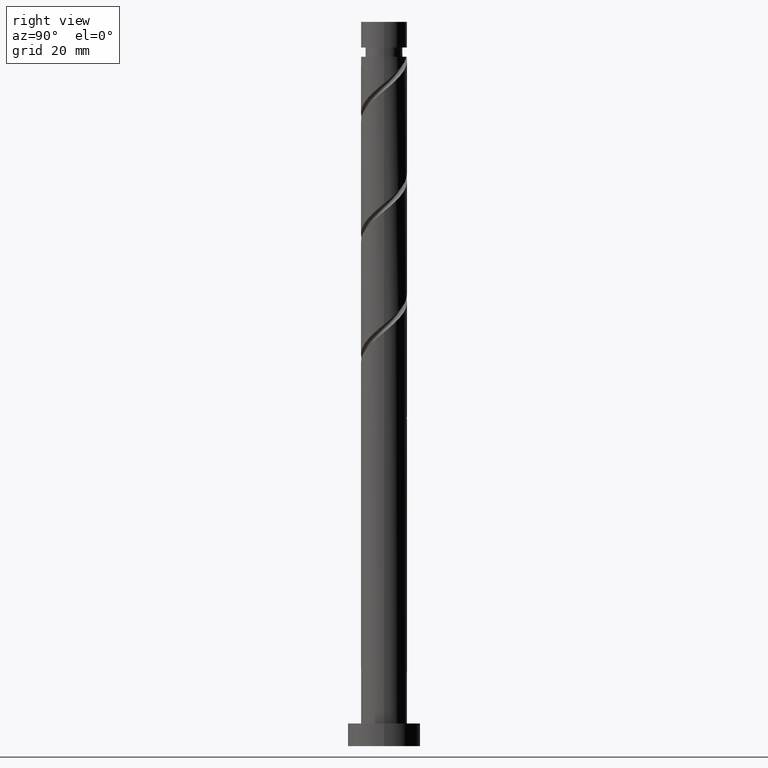
[diagram: clean part render]
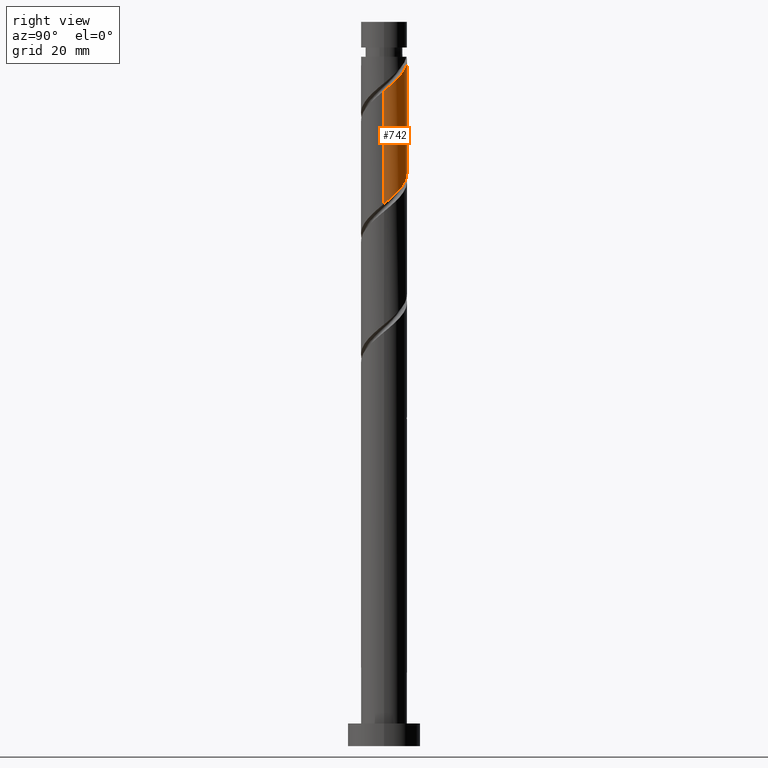
[diagram: same view with one face highlighted and labeled with its STEP entity id]
A machine part, right view. The second image highlights one B-rep face of the part: STEP entity #742.
In plain terms, the highlighted cylindrical surface (edge-blend (fillet) strip) has radius 5.1 mm, axis along (-0, -0, -1).
Its self-contained STEP definition (entity closure, byte-faithful):
#35 = ORIENTED_EDGE ( 'NONE', *, *, #653, .F. ) ;
#72 = CARTESIAN_POINT ( 'NONE',  ( 5.100000000000005862, 3.305457375472709863E-15, 144.7900409647607489 ) ) ;
#82 = DIRECTION ( 'NONE',  ( -0.000000000000000000, -0.000000000000000000, -1.000000000000000000 ) ) ;
#98 = CARTESIAN_POINT ( 'NONE',  ( 0.000000000000000000, 0.000000000000000000, 152.3061621107282804 ) ) ;
#109 = CARTESIAN_POINT ( 'NONE',  ( 0.000000000000000000, 0.000000000000000000, 160.0000000000000000 ) ) ;
#113 = CARTESIAN_POINT ( 'NONE',  ( 2.531763087263168899, 4.487522650124085466, 149.2758590804251924 ) ) ;
#203 = DIRECTION ( 'NONE',  ( -0.000000000000000000, -0.000000000000000000, -1.000000000000000000 ) ) ;
#215 = CARTESIAN_POINT ( 'NONE',  ( 2.381876442926734505, 4.509619120350484067, 124.4273742319403766 ) ) ;
#230 = CARTESIAN_POINT ( 'NONE',  ( 0.4343221952601982183, 5.081472643900035280, 151.0940408986070622 ) ) ;
#234 = CARTESIAN_POINT ( 'NONE',  ( -4.124741339277075092, 2.999418090906761147, 130.4879802925464389 ) ) ;
#285 = ORIENTED_EDGE ( 'NONE', *, *, #832, .T. ) ;
#337 = CYLINDRICAL_SURFACE ( 'NONE', #561, 5.099999999999999645 ) ;
#361 = CARTESIAN_POINT ( 'NONE',  ( -5.091561072240594399, 0.2932675359534164805, 132.9122227167888468 ) ) ;
#399 = VERTEX_POINT ( 'NONE', #1507 ) ;
#439 = CARTESIAN_POINT ( 'NONE',  ( 4.802694060801213638, 1.715846659333174484, 146.2455560501222180 ) ) ;
#456 = CARTESIAN_POINT ( 'NONE',  ( 3.030261786617840070, 4.167156988879663793, 123.8213136258797959 ) ) ;
#469 = CARTESIAN_POINT ( 'NONE',  ( 4.967940086286690260, 1.153070379060092687, 120.7910105955767506 ) ) ;
#474 = CARTESIAN_POINT ( 'NONE',  ( -0.2962832724618680857, 5.143918748178697875, 151.7001015046676571 ) ) ;
#477 = DIRECTION ( 'NONE',  ( -0.000000000000000000, -0.000000000000000000, -1.000000000000000000 ) ) ;
#480 =( BOUNDED_CURVE ( )  B_SPLINE_CURVE ( 2, ( #581, #962, #1054, #1597, #439, #931, #706, #818, #636, #113, #741, #1394, #230, #474, #512 ),
 .UNSPECIFIED., .F., .T. ) 
 B_SPLINE_CURVE_WITH_KNOTS ( ( 3, 2, 2, 2, 2, 2, 2, 3 ),
 ( 0.6795252162417514397, 0.6818181818181818787, 0.6931818181818181213, 0.7045454545454545858, 0.7159090909090907173, 0.7272727272727271819, 0.7386363636363635354, 0.7499999999999998890 ),
 .UNSPECIFIED. ) 
 CURVE ( )  GEOMETRIC_REPRESENTATION_ITEM ( )  RATIONAL_B_SPLINE_CURVE ( ( 0.9061101570135600136, 0.9072237824201421219, 0.9090909090909194967, 0.8998376744372218461, 0.9090909090909194967, 0.8998376744372218461, 0.9090909090909194967, 0.8998376744372218461, 0.9090909090909194967, 0.8998376744372218461, 0.9090909090909194967, 0.8998376744372218461, 0.9090909090909194967, 0.8998376744372219571, 0.9090909090909193857 ) ) 
 REPRESENTATION_ITEM ( '' )  );
#485 = CARTESIAN_POINT ( 'NONE',  ( 3.555900236163433981, 3.655895719307762359, 123.2152530198191869 ) ) ;
#490 = CARTESIAN_POINT ( 'NONE',  ( 5.099999999999997868, -5.892987357177625303E-15, 119.8222832566958118 ) ) ;
#512 = CARTESIAN_POINT ( 'NONE',  ( -1.014887185848723394, 4.997999999999716003, 152.3061621107281951 ) ) ;
#561 = AXIS2_PLACEMENT_3D ( 'NONE', #109, #1081, #727 ) ;
#568 = CARTESIAN_POINT ( 'NONE',  ( -5.099999999999999645, 0.000000000000000000, 160.0000000000000000 ) ) ;
#581 = CARTESIAN_POINT ( 'NONE',  ( 5.100000000000005862, 3.305457375472709863E-15, 144.7900409647607773 ) ) ;
#584 = CARTESIAN_POINT ( 'NONE',  ( -5.099999999999998757, -2.348220850448952543E-15, 133.1556165900291546 ) ) ;
#593 = CARTESIAN_POINT ( 'NONE',  ( -5.099999999999998757, 0.1467551852714936989, 133.0335185853109294 ) ) ;
#606 = CARTESIAN_POINT ( 'NONE',  ( -3.693490123188840624, 3.592466363838560550, 129.8819196864858156 ) ) ;
#623 = FACE_OUTER_BOUND ( 'NONE', #1425, .T. ) ;
#636 = CARTESIAN_POINT ( 'NONE',  ( 3.112626605226006760, 4.039994506981325451, 148.6697984743646259 ) ) ;
#653 = EDGE_CURVE ( 'NONE', #813, #1185, #1458, .T. ) ;
#700 = ORIENTED_EDGE ( 'NONE', *, *, #1048, .F. ) ;
#706 = CARTESIAN_POINT ( 'NONE',  ( 4.124741339277080421, 2.999418090906763368, 147.4576772622434362 ) ) ;
#715 = CARTESIAN_POINT ( 'NONE',  ( 0.2962832724618764124, 5.143918748178693434, 126.2455560501222180 ) ) ;
#723 = CARTESIAN_POINT ( 'NONE',  ( -4.555992555365308228, 2.406369817974963077, 131.0940408986070622 ) ) ;
#724 = EDGE_CURVE ( 'NONE', #1417, #1185, #956, .T. ) ;
#727 = DIRECTION ( 'NONE',  ( -1.000000000000000000, 0.000000000000000000, 0.000000000000000000 ) ) ;
#741 = CARTESIAN_POINT ( 'NONE',  ( 1.848345375122719680, 4.753274594872730852, 149.8819196864858441 ) ) ;
#742 = ADVANCED_FACE ( 'NONE', ( #623 ), #337, .T. ) ;
#744 = CIRCLE ( 'NONE', #1093, 5.099999999999993427 ) ;
#746 = CARTESIAN_POINT ( 'NONE',  ( 4.441846140019162448, 2.505993389535748683, 122.0031318076979687 ) ) ;
#774 = ORIENTED_EDGE ( 'NONE', *, *, #1432, .F. ) ;
#791 = ORIENTED_EDGE ( 'NONE', *, *, #724, .T. ) ;
#813 = VERTEX_POINT ( 'NONE', #1364 ) ;
#818 = CARTESIAN_POINT ( 'NONE',  ( 3.693490123188847729, 3.592466363838562327, 148.0637378683039174 ) ) ;
#832 = EDGE_CURVE ( 'NONE', #1618, #399, #744, .T. ) ;
#833 = CARTESIAN_POINT ( 'NONE',  ( -1.848345375122717460, 4.753274594872723746, 128.0637378683040311 ) ) ;
#838 = CARTESIAN_POINT ( 'NONE',  ( 1.014887185848754259, 4.997999999999999332, 125.6394954440615805 ) ) ;
#852 = CARTESIAN_POINT ( 'NONE',  ( -2.531763087263166678, 4.487522650124081913, 128.6697984743646828 ) ) ;
#931 = CARTESIAN_POINT ( 'NONE',  ( 4.555992555365316221, 2.406369817974962633, 146.8516166561827561 ) ) ;
#950 = LINE ( 'NONE', #568, #1220 ) ;
#956 = LINE ( 'NONE', #1355, #1628 ) ;
#962 = CARTESIAN_POINT ( 'NONE',  ( 5.100000000000004086, 0.1467551852714972516, 144.9121389694789457 ) ) ;
#981 = CARTESIAN_POINT ( 'NONE',  ( 4.802153594329293007, 1.867352329335633776, 121.3970712016373739 ) ) ;
#1048 = EDGE_CURVE ( 'NONE', #1417, #399, #480, .T. ) ;
#1054 = CARTESIAN_POINT ( 'NONE',  ( 5.091561072240601504, 0.2932675359534151482, 145.0334348380010283 ) ) ;
#1081 = DIRECTION ( 'NONE',  ( -0.000000000000000000, -0.000000000000000000, -1.000000000000000000 ) ) ;
#1093 = AXIS2_PLACEMENT_3D ( 'NONE', #98, #477, #1650 ) ;
#1185 = VERTEX_POINT ( 'NONE', #490 ) ;
#1216 = CARTESIAN_POINT ( 'NONE',  ( 5.099999999999997868, -5.892987357177625303E-15, 119.8222832566958118 ) ) ;
#1220 = VECTOR ( 'NONE', #203, 1000.000000000000000 ) ;
#1226 = CARTESIAN_POINT ( 'NONE',  ( -4.802694060801206533, 1.715846659333174040, 131.7001015046676571 ) ) ;
#1247 = CARTESIAN_POINT ( 'NONE',  ( 5.100000000000001421, 0.5840975296641219838, 120.3082432096671539 ) ) ;
#1348 = CARTESIAN_POINT ( 'NONE',  ( 4.081538685709031888, 3.144634449735860926, 122.6091924137585920 ) ) ;
#1355 = CARTESIAN_POINT ( 'NONE',  ( 5.099999999999999645, 6.245698675651500839E-16, 160.0000000000000000 ) ) ;
#1364 = CARTESIAN_POINT ( 'NONE',  ( -5.099999999999998757, -2.348220850448952543E-15, 133.1556165900291546 ) ) ;
#1373 = CARTESIAN_POINT ( 'NONE',  ( 1.733491099235630495, 4.852081251821307895, 125.0334348380010283 ) ) ;
#1394 = CARTESIAN_POINT ( 'NONE',  ( 1.164927662982271572, 5.019026539621373573, 150.4879802925464389 ) ) ;
#1417 = VERTEX_POINT ( 'NONE', #72 ) ;
#1425 = EDGE_LOOP ( 'NONE', ( #700, #791, #35, #774, #285 ) ) ;
#1432 = EDGE_CURVE ( 'NONE', #1618, #813, #950, .T. ) ;
#1458 =( BOUNDED_CURVE ( )  B_SPLINE_CURVE ( 2, ( #584, #593, #361, #1491, #1226, #723, #234, #606, #1484, #852, #833, #1644, #1476, #715, #838, #1373, #215, #456, #485, #1348, #746, #981, #469, #1247, #1216 ),
 .UNSPECIFIED., .F., .T. ) 
 B_SPLINE_CURVE_WITH_KNOTS ( ( 3, 2, 2, 2, 2, 2, 2, 2, 2, 2, 2, 2, 3 ),
 ( 0.4295252162417513286, 0.4318181818181818232, 0.4431818181818181768, 0.4545454545454545303, 0.4659090909090908839, 0.4772727272727272929, 0.4886363636363636465, 0.5000000000000000000, 0.5113636363636363535, 0.5227272727272727071, 0.5340909090909090606, 0.5454545454545454142, 0.5545252162417513286 ),
 .UNSPECIFIED. ) 
 CURVE ( )  GEOMETRIC_REPRESENTATION_ITEM ( )  RATIONAL_B_SPLINE_CURVE ( ( 0.9061101570135544625, 0.9072237824201366818, 0.9090909090909141677, 0.8998376744372164060, 0.9090909090909141677, 0.8998376744372164060, 0.9090909090909141677, 0.8998376744372164060, 0.9090909090909141677, 0.8998376744372164060, 0.9090909090909141677, 0.8998376744372164060, 0.9090909090909141677, 0.8998376744372164060, 0.9090909090909141677, 0.8998376744372164060, 0.9090909090909141677, 0.8998376744372164060, 0.9090909090909141677, 0.8998376744372164060, 0.9090909090909141677, 0.8998376744372164060, 0.9090909090909141677, 0.9017048011079938918, 0.9061101570135544625 ) ) 
 REPRESENTATION_ITEM ( '' )  );
#1476 = CARTESIAN_POINT ( 'NONE',  ( -0.4343221952601962199, 5.081472643900029063, 126.8516166561827987 ) ) ;
#1484 = CARTESIAN_POINT ( 'NONE',  ( -3.112626605226002319, 4.039994506981321010, 129.2758590804252208 ) ) ;
#1491 = CARTESIAN_POINT ( 'NONE',  ( -5.049395566237104838, 1.025323500691385892, 132.3061621107282804 ) ) ;
#1507 = CARTESIAN_POINT ( 'NONE',  ( -1.014887185848723394, 4.997999999999716003, 152.3061621107282235 ) ) ;
#1597 = CARTESIAN_POINT ( 'NONE',  ( 5.049395566237108390, 1.025323500691385448, 145.6394954440615948 ) ) ;
#1618 = VERTEX_POINT ( 'NONE', #1629 ) ;
#1628 = VECTOR ( 'NONE', #82, 1000.000000000000000 ) ;
#1629 = CARTESIAN_POINT ( 'NONE',  ( -5.099999999999993427, 0.000000000000000000, 152.3061621107282804 ) ) ;
#1644 = CARTESIAN_POINT ( 'NONE',  ( -1.164927662982269352, 5.019026539621367355, 127.4576772622434362 ) ) ;
#1650 = DIRECTION ( 'NONE',  ( -1.000000000000000000, 0.000000000000000000, 0.000000000000000000 ) ) ;